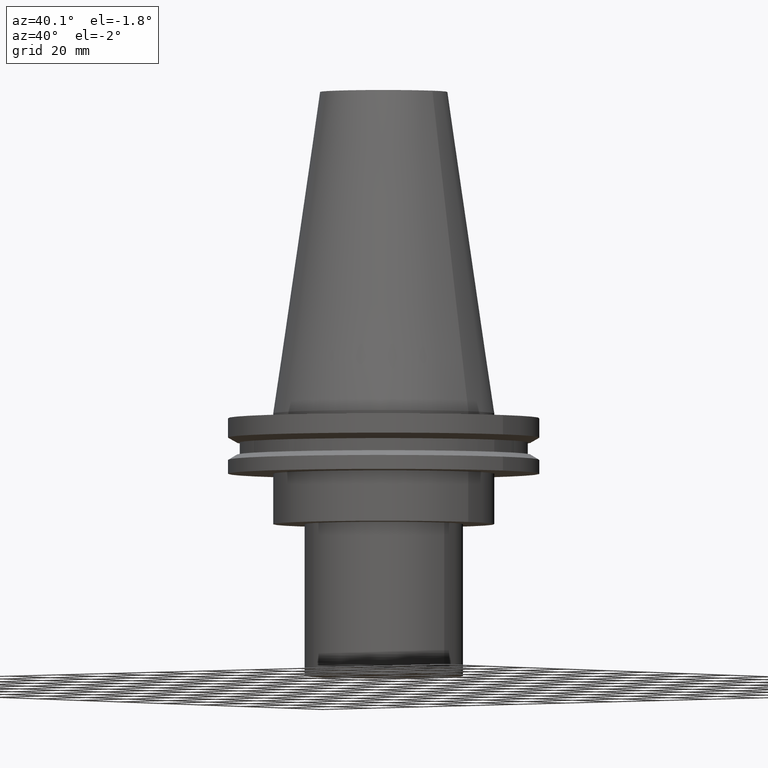
[diagram: clean part render]
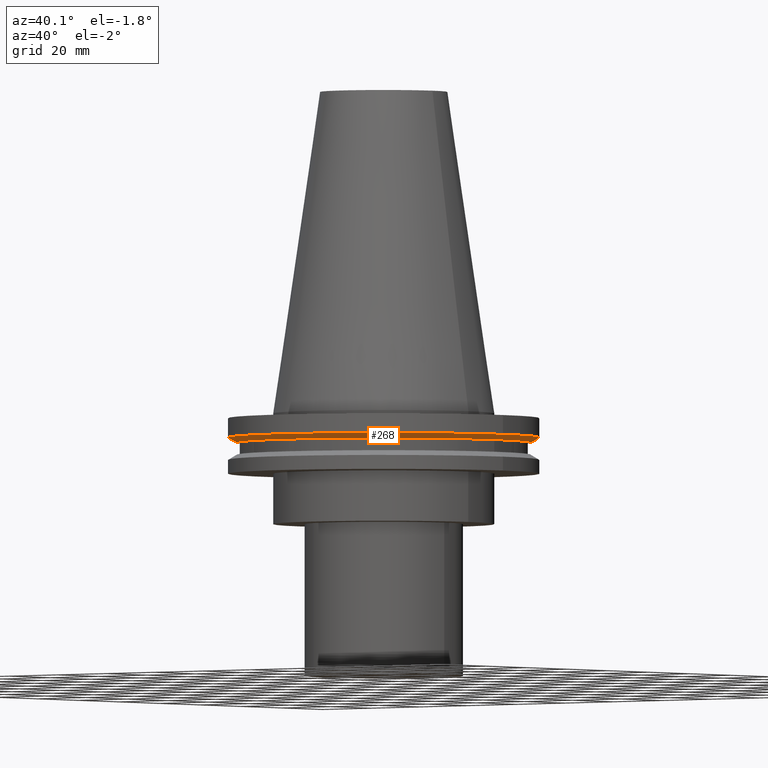
[diagram: same view with one face highlighted and labeled with its STEP entity id]
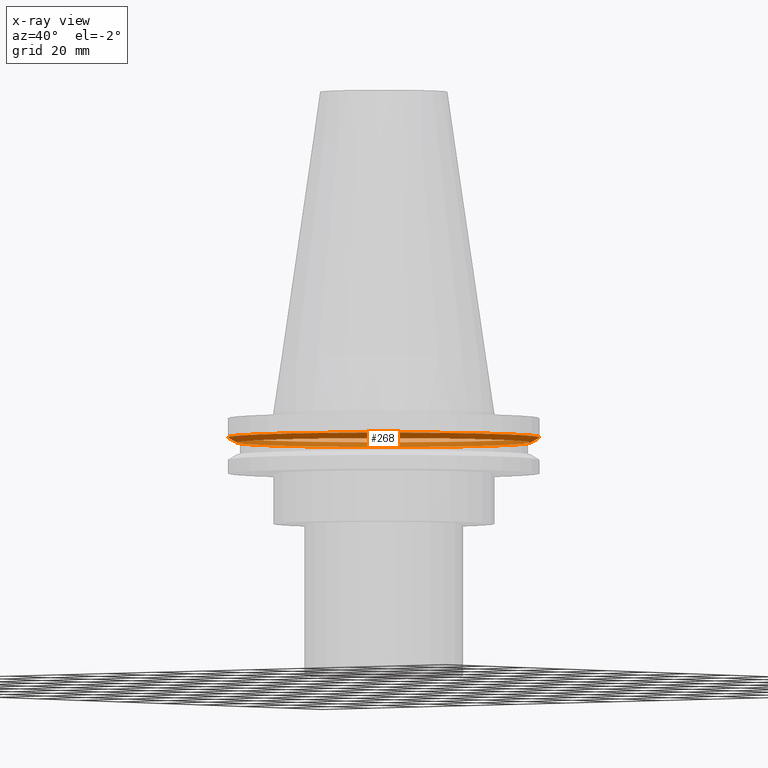
[diagram: x-ray of the same camera — body ghosted, the highlighted face saturated]
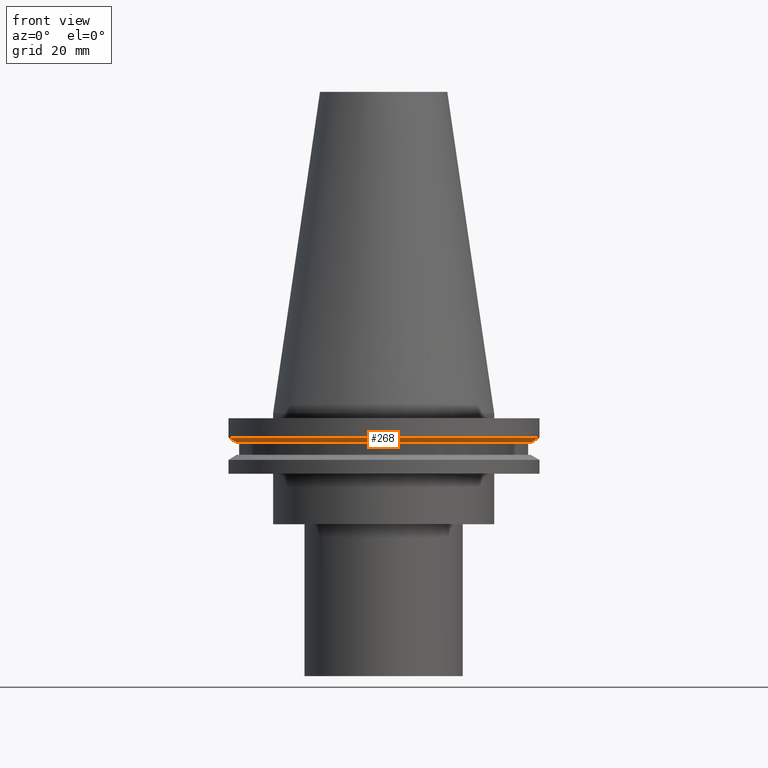
[diagram: same view with one face highlighted and labeled with its STEP entity id]
A machine part, auxiliary view. The second image highlights one B-rep face of the part: STEP entity #268.
The next image is the same camera in x-ray: the body ghosted, the highlighted face saturated — about 44% of this face is hidden behind the body in this view.
A second angle (front view) of the same face is appended — the face is thin or edge-on in the first view.
In plain terms, the highlighted conical surface has half-angle 60 deg.
Its self-contained STEP definition (entity closure, byte-faithful):
#5 = EDGE_CURVE ( 'NONE', #139, #139, #308, .T. ) ;
#25 = CARTESIAN_POINT ( 'NONE',  ( 0.000000000000000000, 0.000000000000000000, -9.204999999999991189 ) ) ;
#62 = DIRECTION ( 'NONE',  ( 1.000000000000000000, 0.000000000000000000, 0.000000000000000000 ) ) ;
#81 = CARTESIAN_POINT ( 'NONE',  ( 49.21500000000000341, 0.000000000000000000, -7.602389855251287187 ) ) ;
#106 = EDGE_CURVE ( 'NONE', #181, #181, #204, .T. ) ;
#117 = EDGE_LOOP ( 'NONE', ( #233 ) ) ;
#121 = AXIS2_PLACEMENT_3D ( 'NONE', #340, #193, #218 ) ;
#138 = AXIS2_PLACEMENT_3D ( 'NONE', #25, #259, #145 ) ;
#139 = VERTEX_POINT ( 'NONE', #81 ) ;
#145 = DIRECTION ( 'NONE',  ( 1.000000000000000000, 0.000000000000000000, 0.000000000000000000 ) ) ;
#147 = FACE_OUTER_BOUND ( 'NONE', #150, .T. ) ;
#150 = EDGE_LOOP ( 'NONE', ( #245 ) ) ;
#154 = AXIS2_PLACEMENT_3D ( 'NONE', #391, #365, #62 ) ;
#181 = VERTEX_POINT ( 'NONE', #329 ) ;
#193 = DIRECTION ( 'NONE',  ( -0.000000000000000000, -0.000000000000000000, 1.000000000000000000 ) ) ;
#204 = CIRCLE ( 'NONE', #121, 46.43919780457007818 ) ;
#218 = DIRECTION ( 'NONE',  ( 1.000000000000000000, 0.000000000000000000, 0.000000000000000000 ) ) ;
#233 = ORIENTED_EDGE ( 'NONE', *, *, #106, .T. ) ;
#245 = ORIENTED_EDGE ( 'NONE', *, *, #5, .F. ) ;
#259 = DIRECTION ( 'NONE',  ( -0.000000000000000000, -0.000000000000000000, 1.000000000000000000 ) ) ;
#268 = ADVANCED_FACE ( 'NONE', ( #147, #349 ), #338, .T. ) ;
#308 = CIRCLE ( 'NONE', #154, 49.21500000000000341 ) ;
#329 = CARTESIAN_POINT ( 'NONE',  ( 46.43919780457007818, 0.000000000000000000, -9.204999999999991189 ) ) ;
#338 = CONICAL_SURFACE ( 'NONE', #138, 46.43919780457007818, 1.047197551196575205 ) ;
#340 = CARTESIAN_POINT ( 'NONE',  ( 0.000000000000000000, 0.000000000000000000, -9.204999999999991189 ) ) ;
#349 = FACE_BOUND ( 'NONE', #117, .T. ) ;
#365 = DIRECTION ( 'NONE',  ( -0.000000000000000000, -0.000000000000000000, 1.000000000000000000 ) ) ;
#391 = CARTESIAN_POINT ( 'NONE',  ( 0.000000000000000000, 0.000000000000000000, -7.602389855251287187 ) ) ;